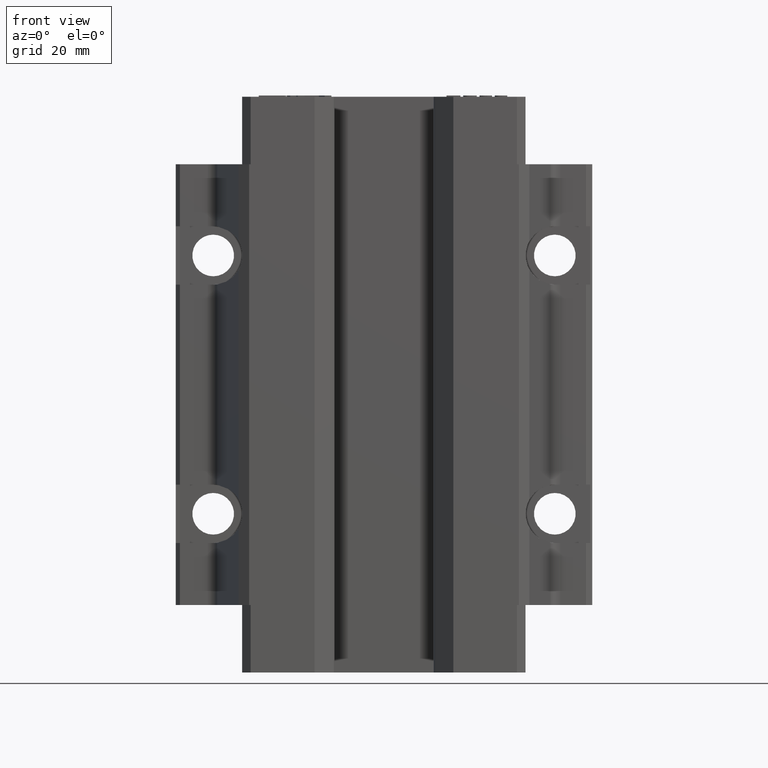
[diagram: clean part render]
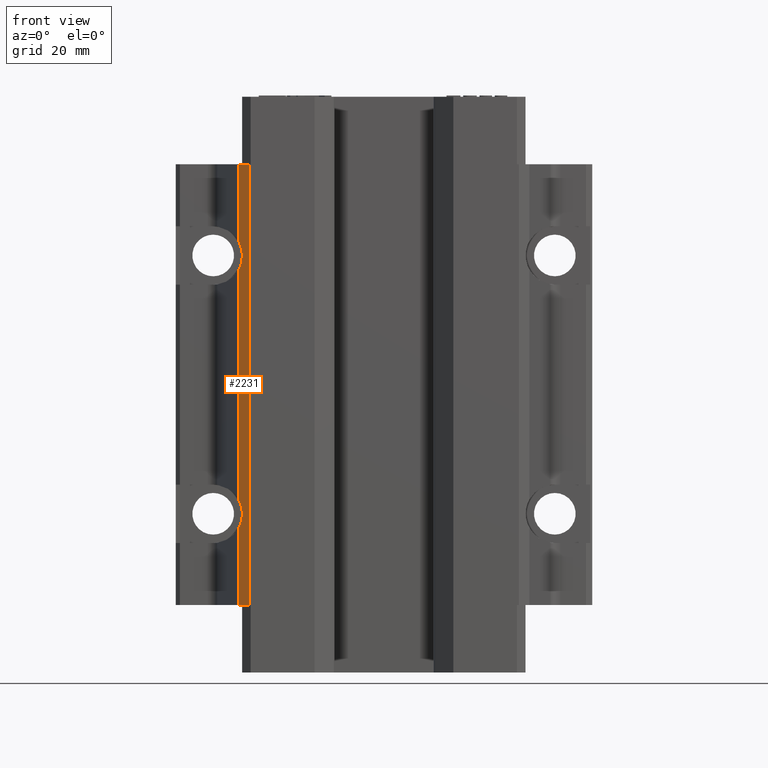
[diagram: same view with one face highlighted and labeled with its STEP entity id]
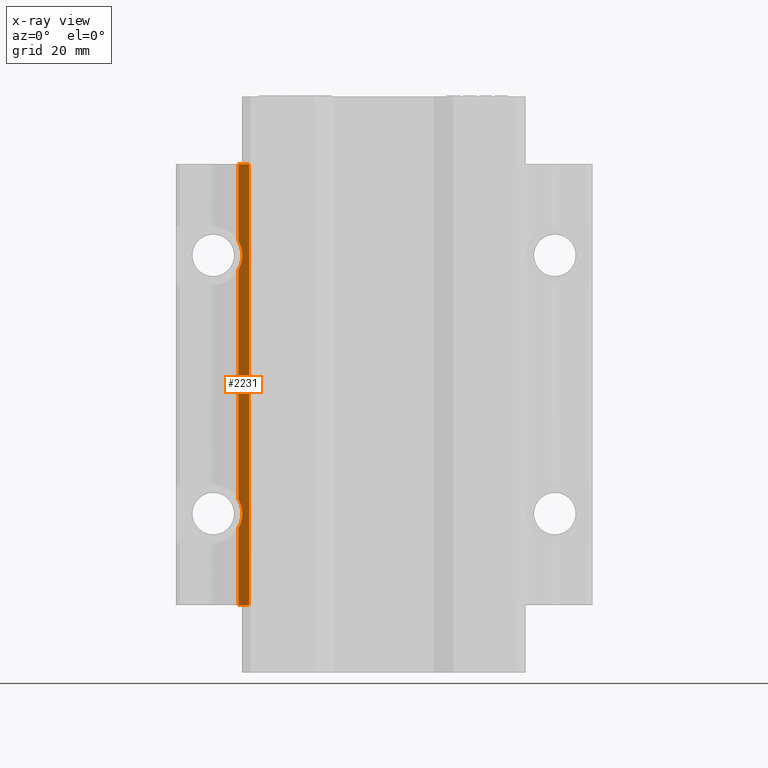
[diagram: x-ray of the same camera — body ghosted, the highlighted face saturated]
A machine part, front view. The second image highlights one B-rep face of the part: STEP entity #2231.
The next image is the same camera in x-ray: the body ghosted, the highlighted face saturated — about 0% of this face is hidden behind the body in this view.
In plain terms, the highlighted planar face has unit normal (-0.6088, -0.7934, 0).
Its self-contained STEP definition (entity closure, byte-faithful):
#1499 = ORIENTED_EDGE ( 'NONE', *, *, #12459, .T. ) ;
#1501 = ORIENTED_EDGE ( 'NONE', *, *, #12355, .T. ) ;
#1509 = ORIENTED_EDGE ( 'NONE', *, *, #12519, .T. ) ;
#1511 = ORIENTED_EDGE ( 'NONE', *, *, #12341, .T. ) ;
#1512 = ORIENTED_EDGE ( 'NONE', *, *, #12404, .T. ) ;
#1513 = EDGE_LOOP ( 'NONE', ( #1509, #1499, #1501, #1512, #1511, #2647, #2279, #2270 ) ) ;
#1579 = VERTEX_POINT ( 'NONE', #6258 ) ;
#2231 = ADVANCED_FACE ( 'NONE', ( #6754 ), #6753, .T. ) ;
#2270 = ORIENTED_EDGE ( 'NONE', *, *, #5464, .T. ) ;
#2279 = ORIENTED_EDGE ( 'NONE', *, *, #2333, .F. ) ;
#2308 = VERTEX_POINT ( 'NONE', #6791 ) ;
#2333 = EDGE_CURVE ( 'NONE', #5430, #2308, #6783, .T. ) ;
#2504 = CARTESIAN_POINT ( 'NONE',  ( -34.88366349176070000, -19.56814834741946300, -27.59552827622565000 ) ) ;
#2506 = CARTESIAN_POINT ( 'NONE',  ( -34.88366349176070000, -19.56814834741946300, 27.59552827622564700 ) ) ;
#2508 = DIRECTION ( 'NONE',  ( 0.0000000000000000000, 0.0000000000000000000, -1.000000000000000000 ) ) ;
#2509 = VECTOR ( 'NONE', #2508, 1000.000000000000000 ) ;
#2510 = CARTESIAN_POINT ( 'NONE',  ( -34.88366349175999700, -19.56814834741999900, -52.90000000000000600 ) ) ;
#2511 = LINE ( 'NONE', #2510, #2509 ) ;
#2531 = DIRECTION ( 'NONE',  ( 0.0000000000000000000, 0.0000000000000000000, -1.000000000000000000 ) ) ;
#2532 = VECTOR ( 'NONE', #2531, 1000.000000000000000 ) ;
#2533 = CARTESIAN_POINT ( 'NONE',  ( -34.88366349175999700, -19.56814834741999900, -52.90000000000000600 ) ) ;
#2534 = LINE ( 'NONE', #2533, #2532 ) ;
#2647 = ORIENTED_EDGE ( 'NONE', *, *, #2682, .T. ) ;
#2660 = CARTESIAN_POINT ( 'NONE',  ( -34.88366349176070000, -19.56814834741946300, -34.40447172377435000 ) ) ;
#2661 = CARTESIAN_POINT ( 'NONE',  ( -33.67837832853369000, -20.49299618137418500, -32.23910503994955700 ) ) ;
#2662 = CARTESIAN_POINT ( 'NONE',  ( -33.67837832853369000, -20.49299618137418500, -29.76089496005044700 ) ) ;
#2663 = CARTESIAN_POINT ( 'NONE',  ( -34.88366349176070000, -19.56814834741946300, -27.59552827622565000 ) ) ;
#2665 =( BOUNDED_CURVE ( )  B_SPLINE_CURVE ( 3, ( #2663, #2662, #2661, #2660 ),
 .UNSPECIFIED., .F., .T. ) 
 B_SPLINE_CURVE_WITH_KNOTS ( ( 4, 4 ),
 ( 5.775274211447656300, 6.791096402911517100 ),
 .UNSPECIFIED. ) 
 CURVE ( )  GEOMETRIC_REPRESENTATION_ITEM ( )  RATIONAL_B_SPLINE_CURVE ( ( 1.000000000000000000, 0.9158415722132665600, 0.9158415722132665600, 1.000000000000000000 ) ) 
 REPRESENTATION_ITEM ( '' )  );
#2667 = CARTESIAN_POINT ( 'NONE',  ( -34.88366349176070000, -19.56814834741946300, -34.40447172377435000 ) ) ;
#2682 = EDGE_CURVE ( 'NONE', #1579, #2308, #6813, .T. ) ;
#2795 = CARTESIAN_POINT ( 'NONE',  ( -34.88366349176070000, -19.56814834741946300, 27.59552827622564700 ) ) ;
#2796 = CARTESIAN_POINT ( 'NONE',  ( -33.67837832853369000, -20.49299618137418100, 29.76089496005044300 ) ) ;
#2797 = CARTESIAN_POINT ( 'NONE',  ( -33.67837832853369000, -20.49299618137418100, 32.23910503994955700 ) ) ;
#2798 = CARTESIAN_POINT ( 'NONE',  ( -34.88366349176070000, -19.56814834741946300, 34.40447172377435000 ) ) ;
#2799 =( BOUNDED_CURVE ( )  B_SPLINE_CURVE ( 3, ( #2798, #2797, #2796, #2795 ),
 .UNSPECIFIED., .F., .T. ) 
 B_SPLINE_CURVE_WITH_KNOTS ( ( 4, 4 ),
 ( 5.775274211447657200, 6.791096402911516200 ),
 .UNSPECIFIED. ) 
 CURVE ( )  GEOMETRIC_REPRESENTATION_ITEM ( )  RATIONAL_B_SPLINE_CURVE ( ( 1.000000000000000000, 0.9158415722132669000, 0.9158415722132669000, 1.000000000000000000 ) ) 
 REPRESENTATION_ITEM ( '' )  );
#2811 = CARTESIAN_POINT ( 'NONE',  ( -34.88366349176070000, -19.56814834741946300, 34.40447172377435000 ) ) ;
#2876 = DIRECTION ( 'NONE',  ( 0.0000000000000000000, 0.0000000000000000000, -1.000000000000000000 ) ) ;
#2877 = VECTOR ( 'NONE', #2876, 1000.000000000000000 ) ;
#2878 = CARTESIAN_POINT ( 'NONE',  ( -34.88366349175999700, -19.56814834741999900, -52.90000000000000600 ) ) ;
#2879 = LINE ( 'NONE', #2878, #2877 ) ;
#2896 = CARTESIAN_POINT ( 'NONE',  ( -34.88366349175998900, -19.56814834742000300, 52.90000000000000600 ) ) ;
#5430 = VERTEX_POINT ( 'NONE', #7808 ) ;
#5464 = EDGE_CURVE ( 'NONE', #5430, #12513, #7844, .T. ) ;
#6258 = CARTESIAN_POINT ( 'NONE',  ( -34.88366349175998200, -19.56814834742000600, -52.90000000000000600 ) ) ;
#6749 = DIRECTION ( 'NONE',  ( 0.7933533402912321700, -0.6087614290087246500, 0.0000000000000000000 ) ) ;
#6750 = DIRECTION ( 'NONE',  ( -0.6087614290087246500, -0.7933533402912321700, 0.0000000000000000000 ) ) ;
#6751 = CARTESIAN_POINT ( 'NONE',  ( -34.88366349175999700, -19.56814834741999900, -52.90000000000000600 ) ) ;
#6752 = AXIS2_PLACEMENT_3D ( 'NONE', #6751, #6750, #6749 ) ;
#6753 = PLANE ( 'NONE',  #6752 ) ;
#6754 = FACE_OUTER_BOUND ( 'NONE', #1513, .T. ) ;
#6780 = DIRECTION ( 'NONE',  ( 0.0000000000000000000, 0.0000000000000000000, -1.000000000000000000 ) ) ;
#6781 = VECTOR ( 'NONE', #6780, 1000.000000000000000 ) ;
#6782 = CARTESIAN_POINT ( 'NONE',  ( -32.36602540155000400, -21.50000000000000000, -52.90000000000000600 ) ) ;
#6783 = LINE ( 'NONE', #6782, #6781 ) ;
#6791 = CARTESIAN_POINT ( 'NONE',  ( -32.36602540154999700, -21.50000000000000000, -52.90000000000000600 ) ) ;
#6810 = DIRECTION ( 'NONE',  ( 0.7933533402915297100, -0.6087614290083368500, 0.0000000000000000000 ) ) ;
#6811 = VECTOR ( 'NONE', #6810, 1000.000000000000100 ) ;
#6812 = CARTESIAN_POINT ( 'NONE',  ( -34.88366349175999700, -19.56814834741999900, -52.90000000000000600 ) ) ;
#6813 = LINE ( 'NONE', #6812, #6811 ) ;
#7808 = CARTESIAN_POINT ( 'NONE',  ( -32.36602540155031700, -21.50000000000041200, 52.90000000000000600 ) ) ;
#7841 = DIRECTION ( 'NONE',  ( -0.7933533402912321700, 0.6087614290087246500, 0.0000000000000000000 ) ) ;
#7842 = VECTOR ( 'NONE', #7841, 1000.000000000000000 ) ;
#7843 = CARTESIAN_POINT ( 'NONE',  ( -34.88366349175999700, -19.56814834741999900, 52.90000000000000600 ) ) ;
#7844 = LINE ( 'NONE', #7843, #7842 ) ;
#12341 = EDGE_CURVE ( 'NONE', #12405, #1579, #2534, .T. ) ;
#12355 = EDGE_CURVE ( 'NONE', #12356, #12357, #2511, .T. ) ;
#12356 = VERTEX_POINT ( 'NONE', #2506 ) ;
#12357 = VERTEX_POINT ( 'NONE', #2504 ) ;
#12404 = EDGE_CURVE ( 'NONE', #12357, #12405, #2665, .T. ) ;
#12405 = VERTEX_POINT ( 'NONE', #2667 ) ;
#12454 = VERTEX_POINT ( 'NONE', #2811 ) ;
#12459 = EDGE_CURVE ( 'NONE', #12454, #12356, #2799, .T. ) ;
#12513 = VERTEX_POINT ( 'NONE', #2896 ) ;
#12519 = EDGE_CURVE ( 'NONE', #12513, #12454, #2879, .T. ) ;